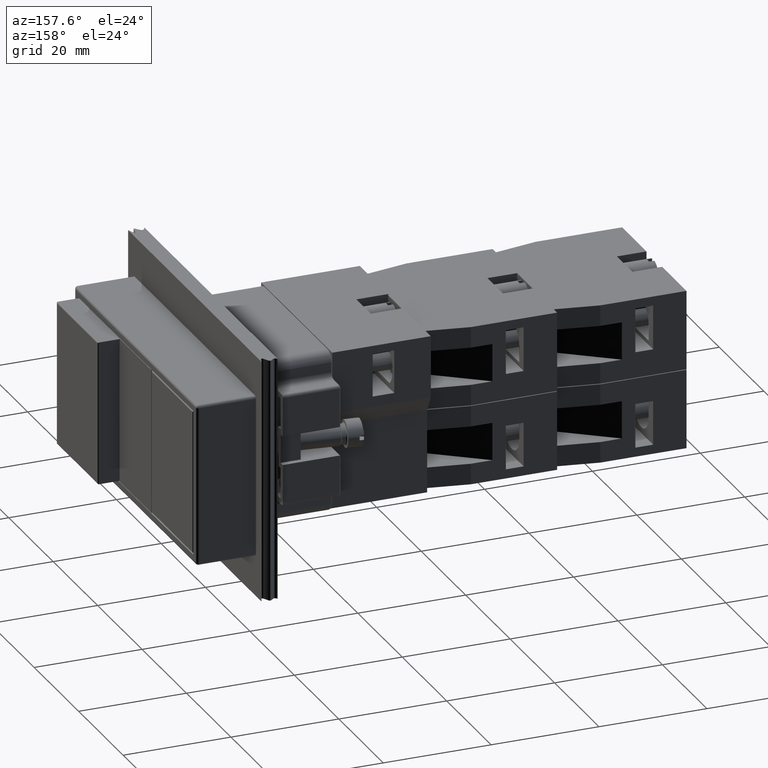
[diagram: clean part render]
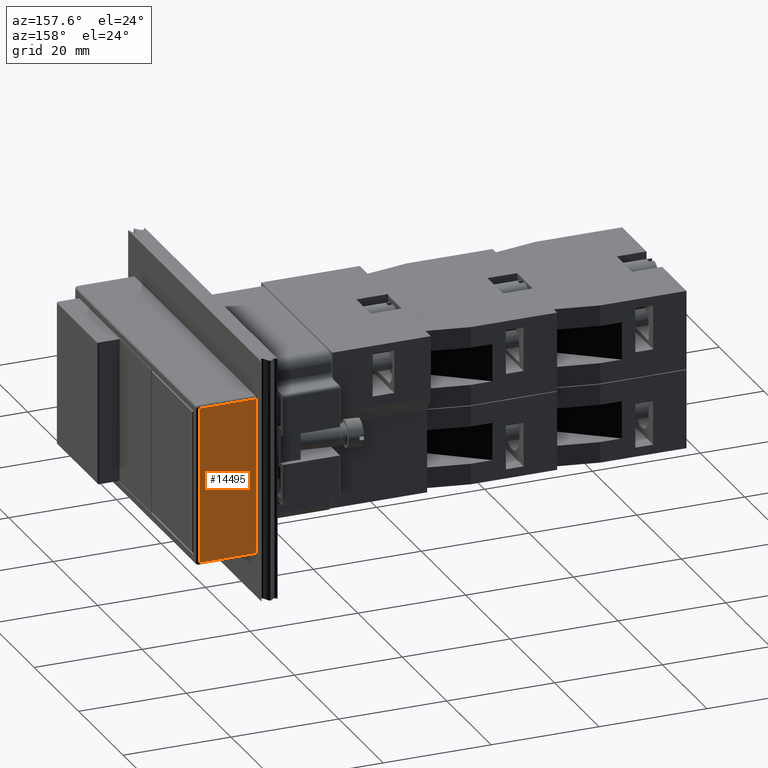
[diagram: same view with one face highlighted and labeled with its STEP entity id]
A machine part, auxiliary view. The second image highlights one B-rep face of the part: STEP entity #14495.
In plain terms, the highlighted planar face has unit normal (0, 1, -0).
Its self-contained STEP definition (entity closure, byte-faithful):
#13865=CARTESIAN_POINT('',(2.060615972896340,27.468314320504650,14.499999999999993));
#13866=VERTEX_POINT('',#13865);
#13882=CARTESIAN_POINT('',(2.060615972896340,27.468314320504650,-14.500000000000007));
#13883=VERTEX_POINT('',#13882);
#13891=CARTESIAN_POINT('',(2.060615972896340,27.468314320504650,-14.500000000000007));
#13892=DIRECTION('',(0.0,0.0,1.0));
#13893=VECTOR('',#13892,29.0);
#13894=LINE('',#13891,#13893);
#13895=EDGE_CURVE('',#13883,#13866,#13894,.T.);
#14060=CARTESIAN_POINT('',(-8.439384027103658,27.468314320504650,-14.500000000000007));
#14061=VERTEX_POINT('',#14060);
#14069=CARTESIAN_POINT('',(-8.439384027103658,27.468314320504650,-14.500000000000007));
#14070=DIRECTION('',(1.0,0.0,0.0));
#14071=VECTOR('',#14070,10.499999999999998);
#14072=LINE('',#14069,#14071);
#14073=EDGE_CURVE('',#14061,#13883,#14072,.T.);
#14460=CARTESIAN_POINT('',(-8.439384027103658,27.468314320504650,14.499999999999993));
#14461=VERTEX_POINT('',#14460);
#14462=CARTESIAN_POINT('',(-8.439384027103658,27.468314320504650,14.499999999999993));
#14463=DIRECTION('',(1.0,0.0,0.0));
#14464=VECTOR('',#14463,10.499999999999998);
#14465=LINE('',#14462,#14464);
#14466=EDGE_CURVE('',#14461,#13866,#14465,.T.);
#14479=CARTESIAN_POINT('',(-8.439384027103658,27.468314320504650,14.499999999999993));
#14480=DIRECTION('',(0.0,1.0,0.0));
#14481=DIRECTION('',(0.0,0.0,1.0));
#14482=AXIS2_PLACEMENT_3D('',#14479,#14480,#14481);
#14483=PLANE('',#14482);
#14484=ORIENTED_EDGE('',*,*,#13895,.F.);
#14485=ORIENTED_EDGE('',*,*,#14073,.F.);
#14486=CARTESIAN_POINT('',(-8.439384027103658,27.468314320504650,14.499999999999993));
#14487=DIRECTION('',(0.0,0.0,-1.0));
#14488=VECTOR('',#14487,29.0);
#14489=LINE('',#14486,#14488);
#14490=EDGE_CURVE('',#14461,#14061,#14489,.T.);
#14491=ORIENTED_EDGE('',*,*,#14490,.F.);
#14492=ORIENTED_EDGE('',*,*,#14466,.T.);
#14493=EDGE_LOOP('',(#14484,#14485,#14491,#14492));
#14494=FACE_OUTER_BOUND('',#14493,.T.);
#14495=ADVANCED_FACE('',(#14494),#14483,.T.);